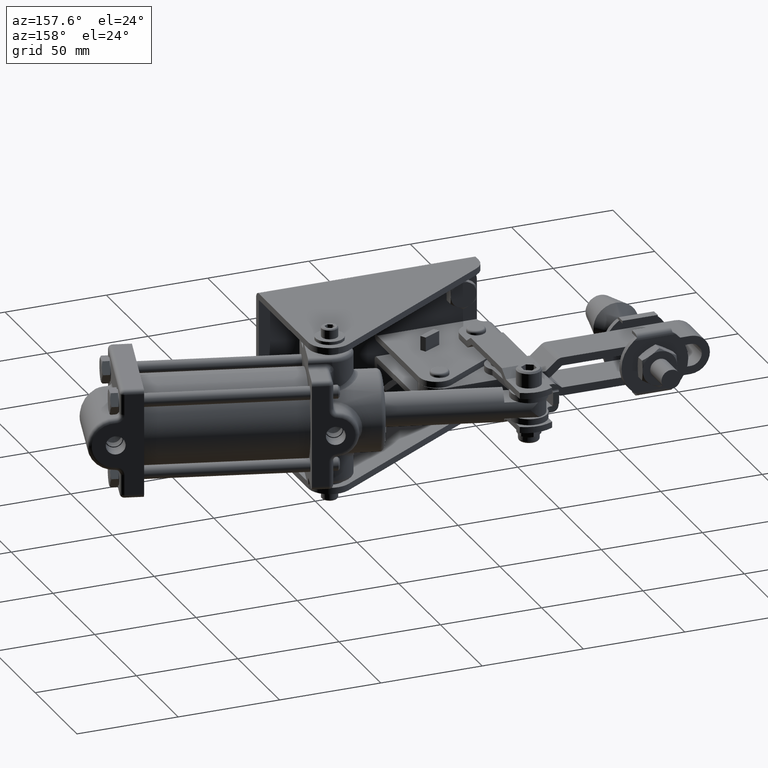
[diagram: clean part render]
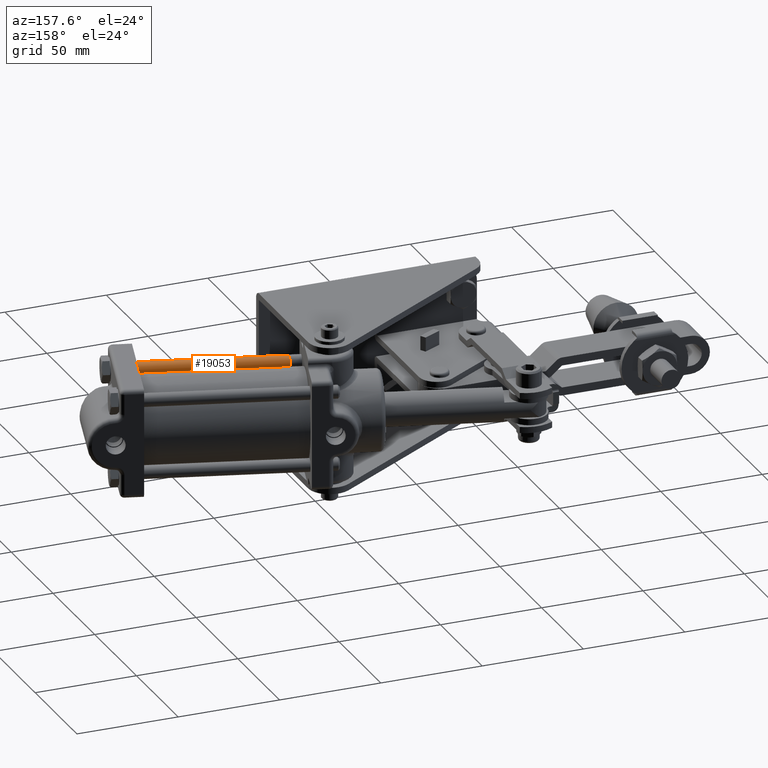
[diagram: same view with one face highlighted and labeled with its STEP entity id]
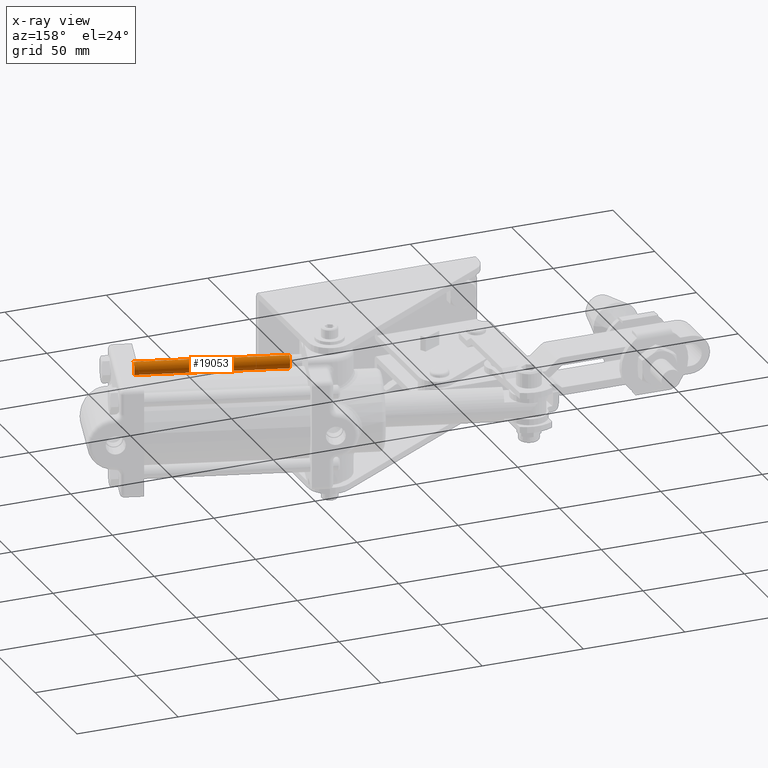
[diagram: x-ray of the same camera — body ghosted, the highlighted face saturated]
A machine part, auxiliary view. The second image highlights one B-rep face of the part: STEP entity #19053.
The next image is the same camera in x-ray: the body ghosted, the highlighted face saturated — about 0% of this face is hidden behind the body in this view.
In plain terms, the highlighted cylindrical surface (edge-blend (fillet) strip) has radius 3.175 mm, axis along (0.9597, -0.281, -0).
Its self-contained STEP definition (entity closure, byte-faithful):
#116 = EDGE_LOOP ( 'NONE', ( #25412, #14971, #2641, #4119 ) ) ;
#427 = CARTESIAN_POINT ( 'NONE',  ( 126.0949130397235600, 17.29466958331705900, 21.17499999999998300 ) ) ;
#2641 = ORIENTED_EDGE ( 'NONE', *, *, #7698, .T. ) ;
#3555 = LINE ( 'NONE', #29102, #30270 ) ;
#4119 = ORIENTED_EDGE ( 'NONE', *, *, #9281, .F. ) ;
#5281 = DIRECTION ( 'NONE',  ( 0.2810313140745081500, 0.9596985987848242200, 0.0000000000000000000 ) ) ;
#5469 = DIRECTION ( 'NONE',  ( 0.9596985987848242200, -0.2810313140745087100, -2.000102180354879800E-016 ) ) ;
#5817 = VERTEX_POINT ( 'NONE', #427 ) ;
#7207 = VERTEX_POINT ( 'NONE', #23992 ) ;
#7485 = CARTESIAN_POINT ( 'NONE',  ( 140.6249417650453200, 13.03979928196550700, 17.99999999999998600 ) ) ;
#7698 = EDGE_CURVE ( 'NONE', #18944, #5817, #17891, .T. ) ;
#9033 = VERTEX_POINT ( 'NONE', #22658 ) ;
#9183 = CYLINDRICAL_SURFACE ( 'NONE', #13664, 3.174999999999993600 ) ;
#9281 = EDGE_CURVE ( 'NONE', #9033, #5817, #28007, .T. ) ;
#9984 = DIRECTION ( 'NONE',  ( 0.9596985987848242200, -0.2810313140745087100, -2.000102180354879800E-016 ) ) ;
#11153 = EDGE_CURVE ( 'NONE', #18944, #7207, #24982, .T. ) ;
#12425 = FACE_OUTER_BOUND ( 'NONE', #116, .T. ) ;
#13620 = CARTESIAN_POINT ( 'NONE',  ( 57.50252146093129100, 37.38077783158239200, 18.00000000000000400 ) ) ;
#13664 = AXIS2_PLACEMENT_3D ( 'NONE', #7485, #9984, #25608 ) ;
#13742 = AXIS2_PLACEMENT_3D ( 'NONE', #32452, #15612, #5281 ) ;
#14177 = CARTESIAN_POINT ( 'NONE',  ( 140.6249417650454900, 13.03979928196620200, 21.17499999999997900 ) ) ;
#14971 = ORIENTED_EDGE ( 'NONE', *, *, #11153, .F. ) ;
#15612 = DIRECTION ( 'NONE',  ( 0.9596985987848241100, -0.2810313140745087600, -2.000102180355001100E-016 ) ) ;
#17235 = CARTESIAN_POINT ( 'NONE',  ( 57.50252146093149000, 37.38077783158308200, 21.17499999999999700 ) ) ;
#17891 = LINE ( 'NONE', #14177, #30845 ) ;
#18713 = EDGE_CURVE ( 'NONE', #7207, #9033, #3555, .T. ) ;
#18944 = VERTEX_POINT ( 'NONE', #17235 ) ;
#19053 = ADVANCED_FACE ( 'NONE', ( #12425 ), #9183, .T. ) ;
#19889 = AXIS2_PLACEMENT_3D ( 'NONE', #13620, #24457, #32372 ) ;
#22658 = CARTESIAN_POINT ( 'NONE',  ( 126.0949130397231700, 17.29466958331567700, 14.82499999999999200 ) ) ;
#23992 = CARTESIAN_POINT ( 'NONE',  ( 57.50252146093108500, 37.38077783158169600, 14.82500000000000600 ) ) ;
#24457 = DIRECTION ( 'NONE',  ( -0.9596985987848242200, 0.2810313140745087100, 2.000102180354879800E-016 ) ) ;
#24982 = CIRCLE ( 'NONE', #19889, 3.174999999999995400 ) ;
#25412 = ORIENTED_EDGE ( 'NONE', *, *, #18713, .F. ) ;
#25608 = DIRECTION ( 'NONE',  ( 6.119339505807961600E-014, 2.185478394931414900E-013, 1.000000000000000000 ) ) ;
#28007 = CIRCLE ( 'NONE', #13742, 3.174999999999994900 ) ;
#29102 = CARTESIAN_POINT ( 'NONE',  ( 140.6249417650451200, 13.03979928196481500, 14.82499999999998900 ) ) ;
#30270 = VECTOR ( 'NONE', #31717, 1000.000000000000000 ) ;
#30845 = VECTOR ( 'NONE', #5469, 1000.000000000000000 ) ;
#31717 = DIRECTION ( 'NONE',  ( 0.9596985987848242200, -0.2810313140745087100, -2.000102180354879800E-016 ) ) ;
#32372 = DIRECTION ( 'NONE',  ( -6.337887345301099700E-014, -2.185478394931413700E-013, -1.000000000000000000 ) ) ;
#32452 = CARTESIAN_POINT ( 'NONE',  ( 126.0949130397233700, 17.29466958331637400, 17.99999999999998900 ) ) ;